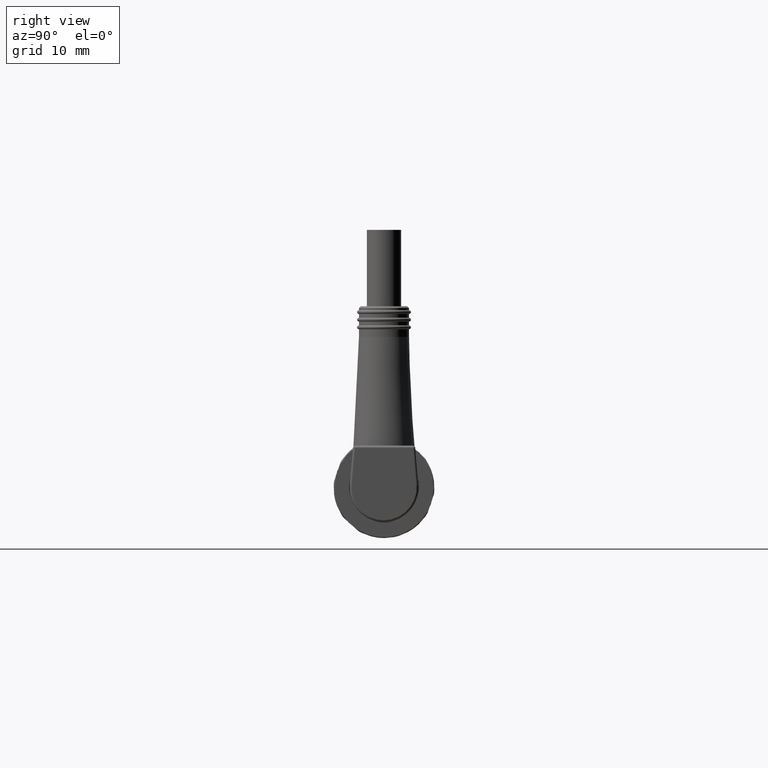
[diagram: clean part render]
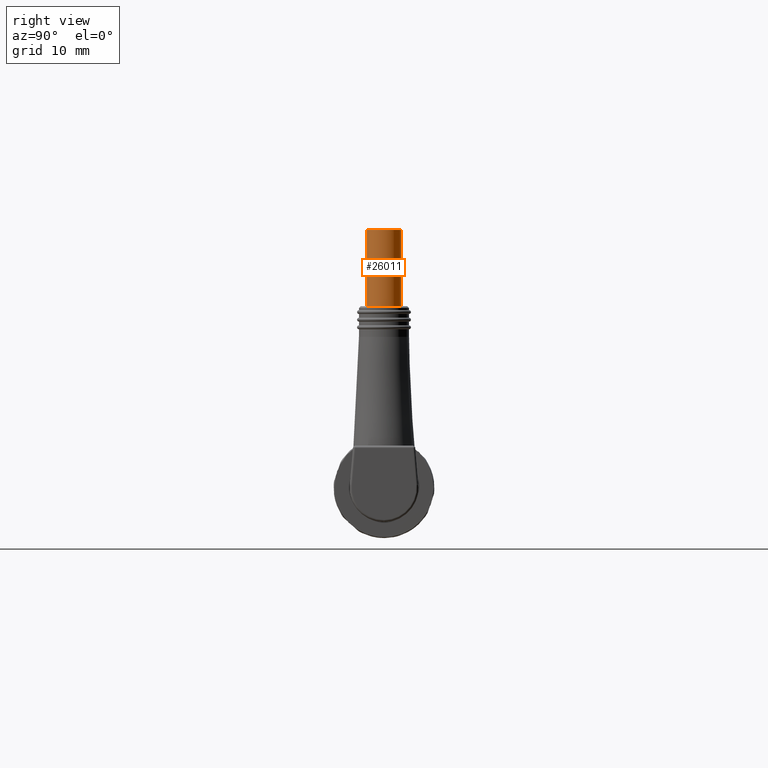
[diagram: same view with one face highlighted and labeled with its STEP entity id]
A machine part, right view. The second image highlights one B-rep face of the part: STEP entity #26011.
In plain terms, the highlighted cylindrical surface (bore or boss wall) has radius 2.25 mm, axis along (0, 0, 1).
Its self-contained STEP definition (entity closure, byte-faithful):
#1291=FACE_BOUND('',#8456,.T.);
#6886=CYLINDRICAL_SURFACE('',#27445,0.0885826771653543);
#7035=FACE_OUTER_BOUND('',#8455,.T.);
#8455=EDGE_LOOP('',(#17080));
#8456=EDGE_LOOP('',(#17081));
#10057=CIRCLE('',#27446,0.0885826771653543);
#10058=CIRCLE('',#27447,0.0885826771653543);
#10790=VERTEX_POINT('',#35433);
#10791=VERTEX_POINT('',#35435);
#13317=EDGE_CURVE('',#10790,#10790,#10057,.T.);
#13318=EDGE_CURVE('',#10791,#10791,#10058,.T.);
#17080=ORIENTED_EDGE('',*,*,#13317,.T.);
#17081=ORIENTED_EDGE('',*,*,#13318,.F.);
#26011=ADVANCED_FACE('',(#7035,#1291),#6886,.T.);
#27445=AXIS2_PLACEMENT_3D('',#35432,#29293,#29294);
#27446=AXIS2_PLACEMENT_3D('',#35434,#29295,#29296);
#27447=AXIS2_PLACEMENT_3D('',#35436,#29297,#29298);
#29293=DIRECTION('center_axis',(9.30106787983099E-31,8.326673E-16,1.));
#29294=DIRECTION('ref_axis',(6.43325774138834E-16,1.,-8.326673E-16));
#29295=DIRECTION('center_axis',(-3.94430452610506E-31,-4.37905770101506E-47,
-1.));
#29296=DIRECTION('ref_axis',(6.43325774138834E-16,1.,-2.97537853279735E-46));
#29297=DIRECTION('center_axis',(-3.94430452610506E-31,-4.37905770101506E-47,
-1.));
#29298=DIRECTION('ref_axis',(-6.43325774138834E-16,-1.,2.97537853279735E-46));
#35432=CARTESIAN_POINT('Origin',(3.0561968503937,7.0261192974412E-16,0.935039370078741));
#35433=CARTESIAN_POINT('',(3.0561968503937,-0.0885826771653533,1.32874015748032));
#35434=CARTESIAN_POINT('Origin',(3.0561968503937,1.03043358328743E-15,1.32874015748032));
#35435=CARTESIAN_POINT('',(3.0561968503937,-0.0885826771653536,0.935039370078741));
#35436=CARTESIAN_POINT('Origin',(3.0561968503937,7.0261192974412E-16,0.935039370078741));